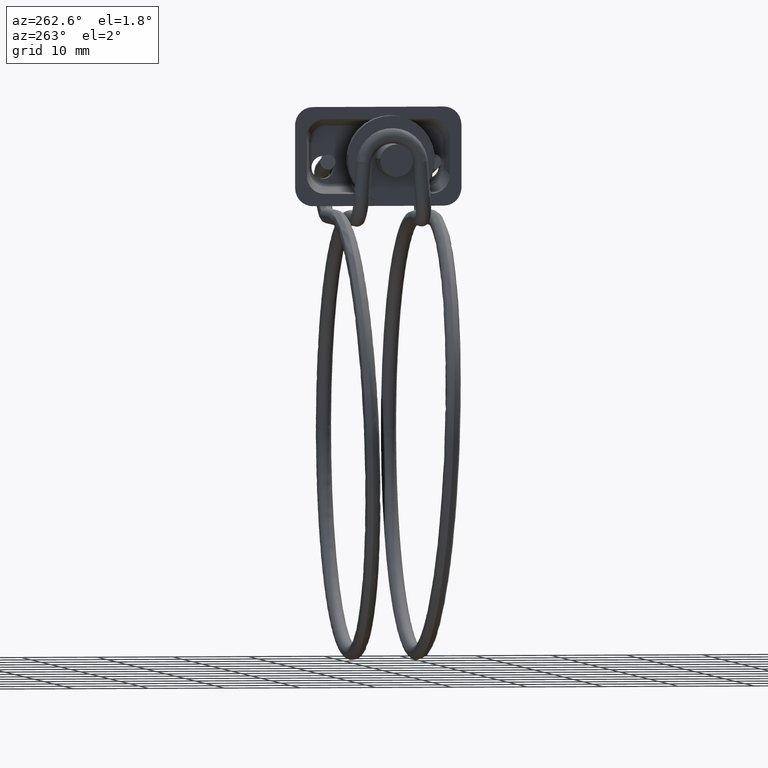
[diagram: clean part render]
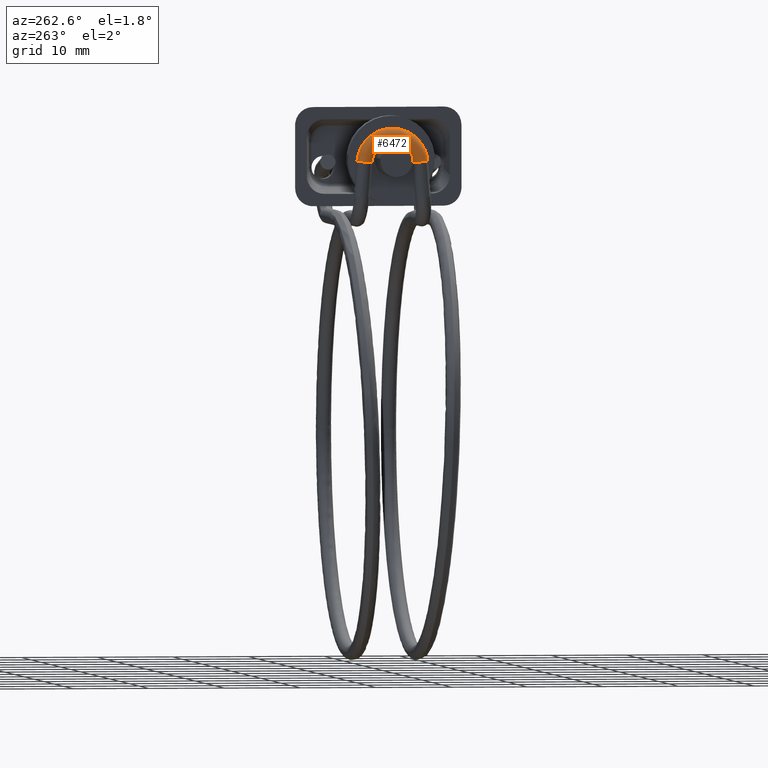
[diagram: same view with one face highlighted and labeled with its STEP entity id]
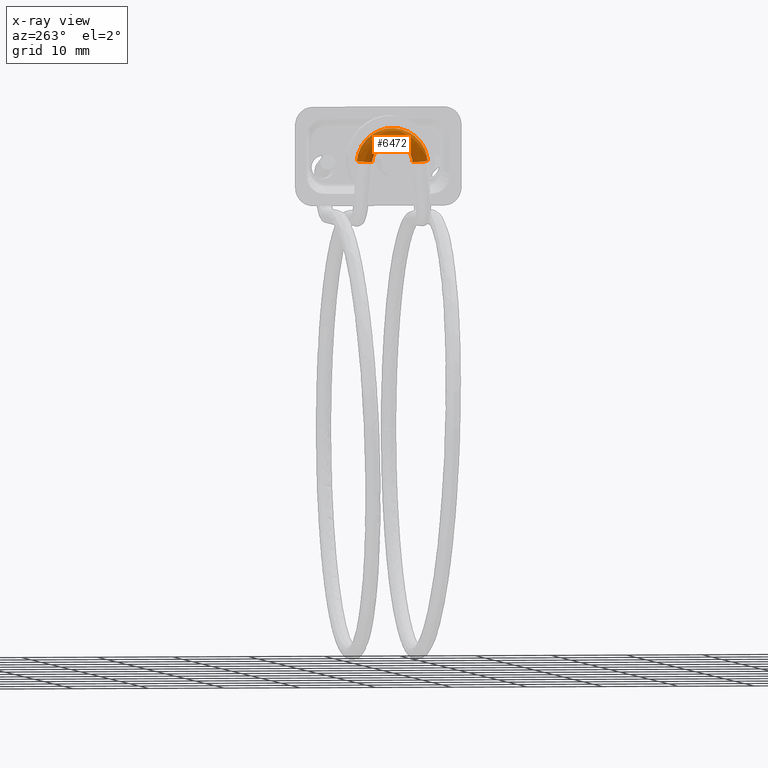
[diagram: x-ray of the same camera — body ghosted, the highlighted face saturated]
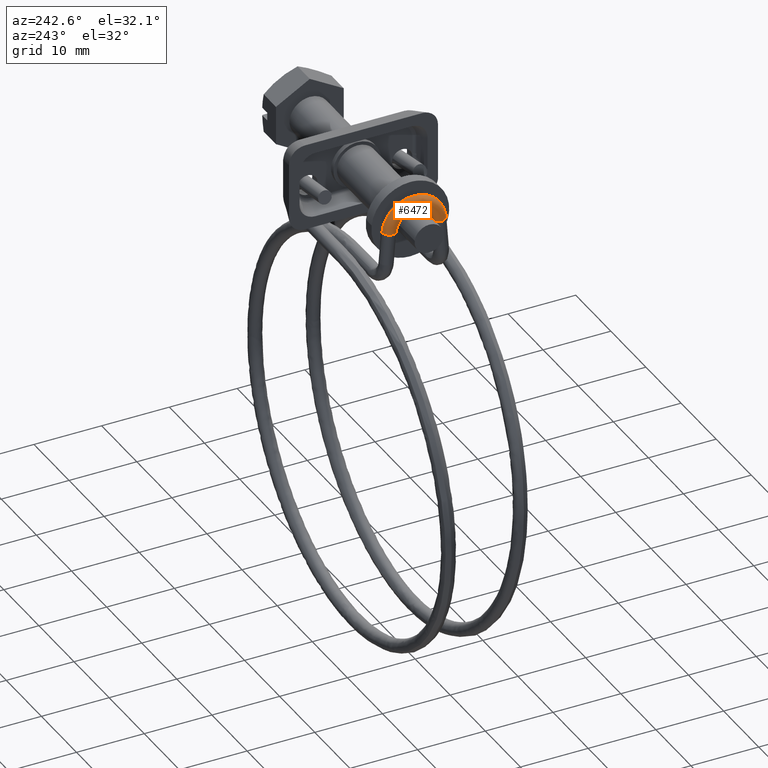
[diagram: same view with one face highlighted and labeled with its STEP entity id]
A machine part, auxiliary view. The second image highlights one B-rep face of the part: STEP entity #6472.
The next image is the same camera in x-ray: the body ghosted, the highlighted face saturated — about 0% of this face is hidden behind the body in this view.
A second angle (auxiliary view) of the same face is appended — the face is thin or edge-on in the first view.
In plain terms, the highlighted face is a freeform B-spline surface patch.
Its self-contained STEP definition (entity closure, byte-faithful):
#5005=CARTESIAN_POINT('',(-30.596788075529080,-3.768917172962768,-0.246909928259652));
#5006=VERTEX_POINT('',#5005);
#5012=CARTESIAN_POINT('',(-30.596782045628011,-3.609188747557114,-0.259755023466901));
#5013=VERTEX_POINT('',#5012);
#5014=CARTESIAN_POINT('',(-30.596788075529073,-3.768917172962768,-0.246909928259652));
#5015=CARTESIAN_POINT('',(-30.603225307172735,-3.689052718736183,-0.253332495286217));
#5016=CARTESIAN_POINT('',(-30.596782045628011,-3.609188747557114,-0.259755023466901));
#5024=(BOUNDED_CURVE()B_SPLINE_CURVE(2,(#5014,#5015,#5016),.UNSPECIFIED.,.F.,.U.)B_SPLINE_CURVE_WITH_KNOTS((3,3),(0.472496921859618,0.500000000000000),.UNSPECIFIED.)CURVE()GEOMETRIC_REPRESENTATION_ITEM()RATIONAL_B_SPLINE_CURVE((0.942645882070517,0.967778139664742,1.0))REPRESENTATION_ITEM(''));
#5025=EDGE_CURVE('',#5006,#5013,#5024,.T.);
#5027=CARTESIAN_POINT('',(-29.587433960218831,-2.692387004893485,-0.333482699734211));
#5028=VERTEX_POINT('',#5027);
#5029=CARTESIAN_POINT('',(-30.596782045628011,-3.609188747557114,-0.259755023466901));
#5030=CARTESIAN_POINT('',(-30.521871998116541,-2.680681681073279,-0.334424022671636));
#5031=CARTESIAN_POINT('',(-29.587433960218835,-2.692387004893485,-0.333482699734211));
#5039=(BOUNDED_CURVE()B_SPLINE_CURVE(2,(#5029,#5030,#5031),.UNSPECIFIED.,.F.,.U.)B_SPLINE_CURVE_WITH_KNOTS((3,3),(0.500000000000000,0.738196819155099),.UNSPECIFIED.)CURVE()GEOMETRIC_REPRESENTATION_ITEM()RATIONAL_B_SPLINE_CURVE((1.0,0.720935067706149,0.973649169093324))REPRESENTATION_ITEM(''));
#5040=EDGE_CURVE('',#5013,#5028,#5039,.T.);
#5059=CARTESIAN_POINT('',(-29.555357691406389,-4.684878636287634,-0.173249825643544));
#5060=VERTEX_POINT('',#5059);
#5074=CARTESIAN_POINT('',(-30.320523720936752,-4.380289210842143,-0.197744402376165));
#5075=VERTEX_POINT('',#5074);
#5076=CARTESIAN_POINT('',(-29.555357691406392,-4.684878636287633,-0.173249825643545));
#5077=CARTESIAN_POINT('',(-29.617828063064774,-4.687661257779221,-0.173026051857611));
#5078=CARTESIAN_POINT('',(-29.680159550337450,-4.682664793791294,-0.173427859209443));
#5079=CARTESIAN_POINT('',(-30.057806485183125,-4.652392785330258,-0.175862283951370));
#5080=CARTESIAN_POINT('',(-30.320523720936755,-4.380289210842143,-0.197744402376165));
#5088=(BOUNDED_CURVE()B_SPLINE_CURVE(2,(#5076,#5077,#5078,#5079,#5080),.UNSPECIFIED.,.F.,.U.)B_SPLINE_CURVE_WITH_KNOTS((3,2,3),(0.228449544410222,0.250000000000000,0.365779888059744),.UNSPECIFIED.)CURVE()GEOMETRIC_REPRESENTATION_ITEM()RATIONAL_B_SPLINE_CURVE((0.953856976582140,0.974752070781655,1.0,0.864355423649281,0.854350158224944))REPRESENTATION_ITEM(''));
#5089=EDGE_CURVE('',#5060,#5075,#5088,.T.);
#5191=CARTESIAN_POINT('',(-30.320523720936755,-4.380289210842143,-0.197744402376165));
#5192=CARTESIAN_POINT('',(-30.568185518393829,-4.123778974051221,-0.218372530430677));
#5193=CARTESIAN_POINT('',(-30.596788075529080,-3.768917172962767,-0.246909928259652));
#5201=(BOUNDED_CURVE()B_SPLINE_CURVE(2,(#5191,#5192,#5193),.UNSPECIFIED.,.F.,.U.)B_SPLINE_CURVE_WITH_KNOTS((3,3),(0.365779888059745,0.472496921859617),.UNSPECIFIED.)CURVE()GEOMETRIC_REPRESENTATION_ITEM()RATIONAL_B_SPLINE_CURVE((0.854350158224944,0.845128070810982,0.942645882070516))REPRESENTATION_ITEM(''));
#5202=EDGE_CURVE('',#5075,#5006,#5201,.T.);
#5226=CARTESIAN_POINT('',(-30.359003200670220,4.338082071988879,-0.201138630523577));
#5227=VERTEX_POINT('',#5226);
#5228=CARTESIAN_POINT('',(-30.596782045628011,3.609188747557344,-0.259755023469736));
#5229=VERTEX_POINT('',#5228);
#5230=CARTESIAN_POINT('',(-30.359003200670220,4.338082071988879,-0.201138630523577));
#5231=CARTESIAN_POINT('',(-30.630166760044997,4.022990958054798,-0.226477735614987));
#5232=CARTESIAN_POINT('',(-30.596782045628011,3.609188747557344,-0.259755023469736));
#5240=(BOUNDED_CURVE()B_SPLINE_CURVE(2,(#5230,#5231,#5232),.UNSPECIFIED.,.F.,.U.)B_SPLINE_CURVE_WITH_KNOTS((3,3),(0.374417106163713,0.500000000000000),.UNSPECIFIED.)CURVE()GEOMETRIC_REPRESENTATION_ITEM()RATIONAL_B_SPLINE_CURVE((0.853556575071041,0.852870487985528,1.0))REPRESENTATION_ITEM(''));
#5241=EDGE_CURVE('',#5227,#5229,#5240,.T.);
#5304=CARTESIAN_POINT('',(-29.587433960217890,2.692387004887284,-0.333482699656951));
#5305=VERTEX_POINT('',#5304);
#5321=CARTESIAN_POINT('',(-30.596782045628011,3.609188747557344,-0.259755023469736));
#5322=CARTESIAN_POINT('',(-30.521871998116410,2.680681681071756,-0.334424022674611));
#5323=CARTESIAN_POINT('',(-29.587433960217897,2.692387004887284,-0.333482699656951));
#5331=(BOUNDED_CURVE()B_SPLINE_CURVE(2,(#5321,#5322,#5323),.UNSPECIFIED.,.F.,.U.)B_SPLINE_CURVE_WITH_KNOTS((3,3),(0.500000000000000,0.738196819155423),.UNSPECIFIED.)CURVE()GEOMETRIC_REPRESENTATION_ITEM()RATIONAL_B_SPLINE_CURVE((1.0,0.720935067705769,0.973649169094012))REPRESENTATION_ITEM(''));
#5332=EDGE_CURVE('',#5229,#5305,#5331,.T.);
#5359=CARTESIAN_POINT('',(-29.555357691395820,4.684878636288536,-0.173249825660649));
#5360=VERTEX_POINT('',#5359);
#5361=CARTESIAN_POINT('',(-29.555357691395812,4.684878636288537,-0.173249825660649));
#5362=CARTESIAN_POINT('',(-29.617828063054176,4.687661257780300,-0.173026051860378));
#5363=CARTESIAN_POINT('',(-29.680159550337450,4.682664793791523,-0.173427859212278));
#5364=CARTESIAN_POINT('',(-30.090786337472242,4.649749135202761,-0.176074881915395));
#5365=CARTESIAN_POINT('',(-30.359003200670220,4.338082071988879,-0.201138630523577));
#5373=(BOUNDED_CURVE()B_SPLINE_CURVE(2,(#5361,#5362,#5363,#5364,#5365),.UNSPECIFIED.,.F.,.U.)B_SPLINE_CURVE_WITH_KNOTS((3,2,3),(0.228449544406651,0.250000000000000,0.374417106163714),.UNSPECIFIED.)CURVE()GEOMETRIC_REPRESENTATION_ITEM()RATIONAL_B_SPLINE_CURVE((0.953856976575214,0.974752070777470,1.0,0.854236293201019,0.853556575071041))REPRESENTATION_ITEM(''));
#5374=EDGE_CURVE('',#5360,#5227,#5373,.T.);
#6372=CARTESIAN_POINT('',(-29.587433960217894,2.692387004887285,-0.333482699656951));
#6373=CARTESIAN_POINT('',(-29.587433960115092,2.492582674422308,2.151078955795410));
#6374=CARTESIAN_POINT('',(-29.587433960115099,0.0,2.151078955795410));
#6375=CARTESIAN_POINT('',(-29.587433960115103,-2.492582674568451,2.151078955795410));
#6376=CARTESIAN_POINT('',(-29.587433960218828,-2.692387004893486,-0.333482699734211));
#6384=(BOUNDED_CURVE()B_SPLINE_CURVE(2,(#6372,#6373,#6374,#6375,#6376),.UNSPECIFIED.,.F.,.U.)B_SPLINE_CURVE_WITH_KNOTS((3,2,3),(-3.784695569143576,-2.0,-0.215304430781950),.UNSPECIFIED.)CURVE()GEOMETRIC_REPRESENTATION_ITEM()RATIONAL_B_SPLINE_CURVE((0.937934142142273,0.711729769745817,1.0,0.711729769733788,0.937934142161152))REPRESENTATION_ITEM(''));
#6385=EDGE_CURVE('',#5305,#5028,#6384,.T.);
#6390=CARTESIAN_POINT('',(-29.555357691395820,4.684878636288536,-0.173249825660649));
#6391=CARTESIAN_POINT('',(-29.555357691525764,4.337209807383771,4.150003035176913));
#6392=CARTESIAN_POINT('',(-29.555357691525771,0.0,4.150003035176913));
#6393=CARTESIAN_POINT('',(-29.555357691525771,-4.337209807354707,4.150003035176913));
#6394=CARTESIAN_POINT('',(-29.555357691406396,-4.684878636287634,-0.173249825643545));
#6402=(BOUNDED_CURVE()B_SPLINE_CURVE(2,(#6390,#6391,#6392,#6393,#6394),.UNSPECIFIED.,.F.,.U.)B_SPLINE_CURVE_WITH_KNOTS((3,2,3),(-3.784695569401575,-2.0,-0.215304430606937),.UNSPECIFIED.)CURVE()GEOMETRIC_REPRESENTATION_ITEM()RATIONAL_B_SPLINE_CURVE((0.916836064771803,0.695719978484381,0.977505800795127,0.695719978485725,0.916836064769693))REPRESENTATION_ITEM(''));
#6403=EDGE_CURVE('',#5360,#5060,#6402,.T.);
#6408=CARTESIAN_POINT('',(-29.573095712473723,2.697000227537403,-0.701626980400798));
#6409=CARTESIAN_POINT('',(-29.573095712473727,2.857391207192241,2.151259145014113));
#6410=CARTESIAN_POINT('',(-29.573095712473734,0.0,2.151259145014111));
#6411=CARTESIAN_POINT('',(-29.573095712473727,-2.857391111909000,2.151259145014111));
#6412=CARTESIAN_POINT('',(-29.573095712473730,-2.697000232585620,-0.701626890607786));
#6413=CARTESIAN_POINT('',(-29.580243482136606,2.696910542910242,-0.701621938276935));
#6414=CARTESIAN_POINT('',(-29.580243482136595,2.857296189007795,2.151169318763148));
#6415=CARTESIAN_POINT('',(-29.580243482136588,0.0,2.151169318763147));
#6416=CARTESIAN_POINT('',(-29.580243482136591,-2.857296093727722,2.151169318763147));
#6417=CARTESIAN_POINT('',(-29.580243482136595,-2.696910547958290,-0.701621848486909));
#6418=CARTESIAN_POINT('',(-30.587355004318916,2.684274094670095,-0.700911509530923));
#6419=CARTESIAN_POINT('',(-30.587355004318919,2.843908249428528,2.138512915912058));
#6420=CARTESIAN_POINT('',(-30.587355004318905,0.0,2.138512915912058));
#6421=CARTESIAN_POINT('',(-30.587355004318926,-2.843908154594893,2.138512915912057));
#6422=CARTESIAN_POINT('',(-30.587355004318916,-2.684274099694489,-0.700911420161610));
#6423=CARTESIAN_POINT('',(-30.599921044202269,3.682618621782489,-0.757039041334637));
#6424=CARTESIAN_POINT('',(-30.599921044202251,3.901624464797254,3.138433960115872));
#6425=CARTESIAN_POINT('',(-30.599921044202269,0.0,3.138433960115873));
#6426=CARTESIAN_POINT('',(-30.599921044202258,-3.901624334692765,3.138433960115873));
#6427=CARTESIAN_POINT('',(-30.599921044202265,-3.682618628675575,-0.757038918726780));
#6428=CARTESIAN_POINT('',(-30.612487084085615,4.680963148894885,-0.813166573138352));
#6429=CARTESIAN_POINT('',(-30.612487084085629,4.959340680165979,4.138355004319689));
#6430=CARTESIAN_POINT('',(-30.612487084085611,0.0,4.138355004319688));
#6431=CARTESIAN_POINT('',(-30.612487084085615,-4.959340514790636,4.138355004319688));
#6432=CARTESIAN_POINT('',(-30.612487084085618,-4.680963157656661,-0.813166417291950));
#6433=CARTESIAN_POINT('',(-29.612566039881798,4.693509376637307,-0.813871929633536));
#6434=CARTESIAN_POINT('',(-29.612566039881802,4.972633033821937,4.150921044203042));
#6435=CARTESIAN_POINT('',(-29.612566039881798,0.0,4.150921044203042));
#6436=CARTESIAN_POINT('',(-29.612566039881802,-4.972632868003343,4.150921044203041));
#6437=CARTESIAN_POINT('',(-29.612566039881795,-4.693509385422568,-0.813871773369424));
#6438=CARTESIAN_POINT('',(-29.583948756806951,4.693868443938578,-0.813892116613906));
#6439=CARTESIAN_POINT('',(-29.583948756806961,4.973013454905692,4.151280678518727));
#6440=CARTESIAN_POINT('',(-29.583948756806954,0.0,4.151280678518726));
#6441=CARTESIAN_POINT('',(-29.583948756806954,-4.973013289074411,4.151280678518727));
#6442=CARTESIAN_POINT('',(-29.583948756806958,-4.693868452724511,-0.813891960337840));
#6443=CARTESIAN_POINT('',(-29.547957526286488,4.692262646624990,-0.813801837719856));
#6444=CARTESIAN_POINT('',(-29.547957526286481,4.971312160601917,4.149672345440335));
#6445=CARTESIAN_POINT('',(-29.547957526286488,0.0,4.149672345440338));
#6446=CARTESIAN_POINT('',(-29.547957526286485,-4.971311994827370,4.149672345440334));
#6447=CARTESIAN_POINT('',(-29.547957526286485,-4.692262655407913,-0.813801681497252));
#6448=CARTESIAN_POINT('',(-29.540515408002889,4.691930606475921,-0.813783170222293));
#6449=CARTESIAN_POINT('',(-29.540515408002872,4.970960373978873,4.149339780956273));
#6450=CARTESIAN_POINT('',(-29.540515408002889,0.0,4.149339780956277));
#6451=CARTESIAN_POINT('',(-29.540515408002875,-4.970960208216058,4.149339780956269));
#6452=CARTESIAN_POINT('',(-29.540515408002879,-4.691930615258221,-0.813783014010744));
#6460=(BOUNDED_SURFACE()B_SPLINE_SURFACE(2,2,((#6408,#6413,#6418,#6423,#6428,#6433,#6438,#6443,#6448),(#6409,#6414,#6419,#6424,#6429,#6434,#6439,#6444,#6449),(#6410,#6415,#6420,#6425,#6430,#6435,#6440,#6445,#6450),(#6411,#6416,#6421,#6426,#6431,#6436,#6441,#6446,#6451),(#6412,#6417,#6422,#6427,#6432,#6437,#6442,#6447,#6452)),.UNSPECIFIED.,.F.,.F.,.U.)B_SPLINE_SURFACE_WITH_KNOTS((3,2,3),(3,1,2,2,1,3),(0.0,8.099795068274879,16.199589952091529),(0.0,0.016900007144360,1.673754256636751,3.330608506129141,3.396882612904863,3.413801518731012),.UNSPECIFIED.)GEOMETRIC_REPRESENTATION_ITEM()RATIONAL_B_SPLINE_SURFACE(((0.994169189061126,0.991216722504728,0.698808356985342,0.988264255948330,0.698808356985342,0.988264255948330,0.976686031031677,0.963314756259557,0.960595449294107),(0.687012117665148,0.684971840895797,0.482905540080145,0.682931564126445,0.482905540080145,0.682931564126445,0.674930530794980,0.665690425691993,0.663811271864384),(1.005975054826939,1.002987527413470,0.707106781186548,1.0,0.707106781186548,1.0,0.988284282420452,0.974754222326060,0.972002623298692),(0.687012124928954,0.684971848138030,0.482905545185924,0.682931571347107,0.482905545185924,0.682931571347107,0.674930537931047,0.665690432730364,0.663811278882886),(0.994169175071229,0.991216708556378,0.698808347151747,0.988264242041527,0.698808347151747,0.988264242041527,0.976686017287802,0.963314742703842,0.960595435776658)))REPRESENTATION_ITEM('')SURFACE());
#6461=ORIENTED_EDGE('',*,*,#5025,.F.);
#6462=ORIENTED_EDGE('',*,*,#5202,.F.);
#6463=ORIENTED_EDGE('',*,*,#5089,.F.);
#6464=ORIENTED_EDGE('',*,*,#6403,.F.);
#6465=ORIENTED_EDGE('',*,*,#5374,.T.);
#6466=ORIENTED_EDGE('',*,*,#5241,.T.);
#6467=ORIENTED_EDGE('',*,*,#5332,.T.);
#6468=ORIENTED_EDGE('',*,*,#6385,.T.);
#6469=ORIENTED_EDGE('',*,*,#5040,.F.);
#6470=EDGE_LOOP('',(#6461,#6462,#6463,#6464,#6465,#6466,#6467,#6468,#6469));
#6471=FACE_OUTER_BOUND('',#6470,.T.);
#6472=ADVANCED_FACE('',(#6471),#6460,.T.);